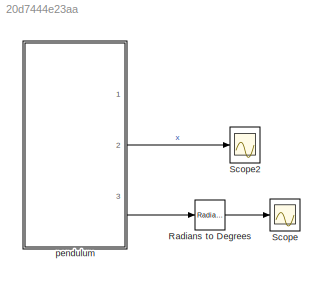
MODEL slx_20d7444e23aa
KIND model
CONFIG AbsTol = auto
CONFIG EnableMultiTasking = off
CONFIG FixedStep = auto
CONFIG MaxStep = 0.01
CONFIG MinStep = auto
CONFIG RelTol = 1e-3
CONFIG SampleTimeConstraint = Unconstrained
CONFIG SolverName = VariableStepAuto
CONFIG StartTime = 0.0
CONFIG StopTime = 10
BLOCK [Reference] Radians to Degrees  REF=simulink_extras/Transformations/Radians
to Degrees
  Ports = [1, 1]
  SourceBlock = simulink_extras/Transformations/Radians\nto Degrees
  SourceProductBaseCode = SL
  SourceType = RadiansToDegrees
BLOCK [Scope] Scope
  Floating = off
  NumInputPorts = 1
  Ports = [1]
  ScopeSpecificationString = Simulink.scopes.TimeScopeBlockCfg('CurrentConfiguration', extmgr.ConfigurationSet(extmgr.Configuration('Core','General UI',true),extmgr.Configuration('Core','Source UI',true),extmgr.Configuration('Sources','WiredSimulink',true,'DataLoggingVariableName','ScopeData2'),extmgr.Configuration('Visuals','Time Domain',true,'SerializedDisplays',{struct('MinYLimReal','-8.0066','MaxYLimReal','34.22296','YLab...<+1412ch>
BLOCK [Scope] Scope2
  Floating = off
  NumInputPorts = 1
  Ports = [1]
  ScopeSpecificationString = Simulink.scopes.TimeScopeBlockCfg('CurrentConfiguration', extmgr.ConfigurationSet(extmgr.Configuration('Core','General UI',true),extmgr.Configuration('Core','Source UI',true),extmgr.Configuration('Sources','WiredSimulink',true,'DataLoggingVariableName','ScopeData2'),extmgr.Configuration('Visuals','Time Domain',true,'SerializedDisplays',{struct('MinYLimReal','-0.13674','MaxYLimReal','0.57075','YLab...<+1415ch>
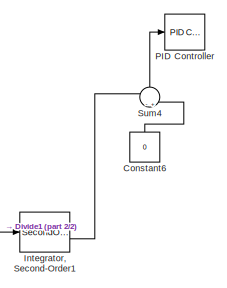
[diagram: pendulum - part 1/2, top right region]
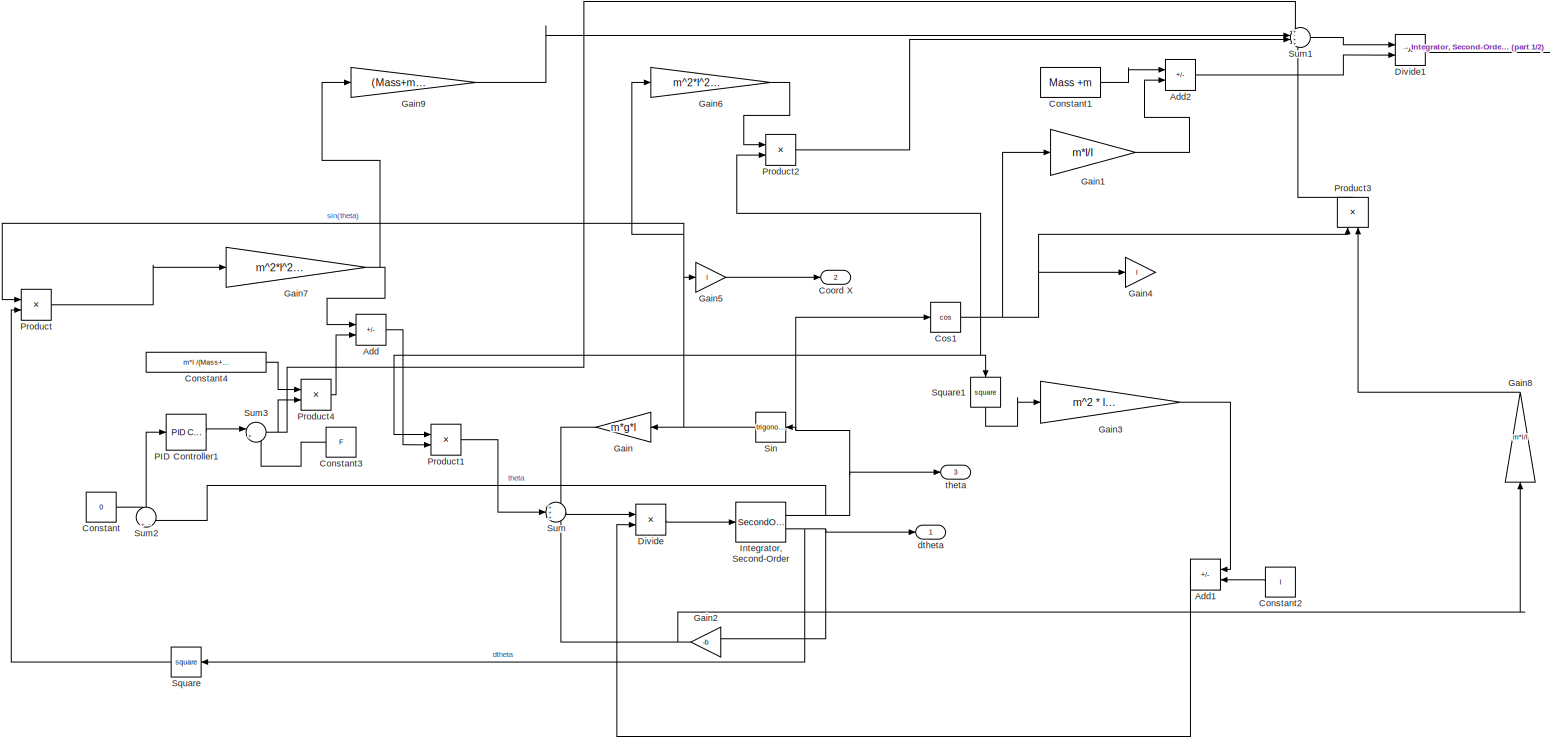
[diagram: pendulum - part 2/2, most of the canvas]
BLOCK [SubSystem] pendulum
  Ports = [0, 3]
  RequestExecContextInheritance = off
BLOCK [Sum] pendulum/Add
  IconShape = rectangular
  Inputs = -+
  Ports = [2, 1]
BLOCK [Sum] pendulum/Add1
  IconShape = rectangular
  Inputs = -+
  NameLocation = top
  Ports = [2, 1]
BLOCK [Sum] pendulum/Add2
  IconShape = rectangular
  Inputs = +-
  Ports = [2, 1]
BLOCK [Constant] pendulum/Constant
  Value = 0
BLOCK [Constant] pendulum/Constant1
  Value = Mass +m
BLOCK [Constant] pendulum/Constant2
  NameLocation = top
  Value = I
BLOCK [Constant] pendulum/Constant3
  NameLocation = top
  Value = F
BLOCK [Constant] pendulum/Constant4
  Value = m*l /(Mass+m)
BLOCK [Constant] pendulum/Constant6
  NameLocation = right
  Value = 0
BLOCK [Outport] pendulum/Coord X
  Port = 2
BLOCK [Trigonometry] pendulum/Cos1
  Operator = cos
  Ports = [1, 1]
BLOCK [Product] pendulum/Divide
  Inputs = */
  Ports = [2, 1]
BLOCK [Product] pendulum/Divide1
  Inputs = */
  Ports = [2, 1]
BLOCK [Gain] pendulum/Gain
  Gain = m*g*l
  NameLocation = top
BLOCK [Gain] pendulum/Gain1
  Gain = m*l/I
BLOCK [Gain] pendulum/Gain2
  Gain = -b
  NameLocation = top
BLOCK [Gain] pendulum/Gain3
  Gain = m^2 * l^2 / (Mass+m)
BLOCK [Gain] pendulum/Gain4
  Gain = l
BLOCK [Gain] pendulum/Gain5
  Gain = l
BLOCK [Gain] pendulum/Gain6
  Gain = m^2*l^2*g/I
BLOCK [Gain] pendulum/Gain7
  Gain = m^2*l^2/(m+Mass)
BLOCK [Gain] pendulum/Gain8
  Gain = m*l/I
  NameLocation = right
BLOCK [Gain] pendulum/Gain9
  Gain = (Mass+m)/(m*l)
BLOCK [SecondOrderIntegrator] pendulum/Integrator, Second-Order
  ICX = deg2rad(start_angle_deg)
  Ports = [1, 2]
BLOCK [SecondOrderIntegrator] pendulum/Integrator, Second-Order1
  Ports = [1, 2]
BLOCK [Reference] pendulum/PID Controller  REF=slpidlib/PID Controller
  Ports = [1, 1]
  SourceBlock = slpidlib/PID Controller
  SourceProductBaseCode = SL
  SourceType = PID 1dof
BLOCK [Reference] pendulum/PID Controller1  REF=slpidlib/PID Controller
  Ports = [1, 1]
  SourceBlock = slpidlib/PID Controller
  SourceProductBaseCode = SL
  SourceType = PID 1dof
BLOCK [Product] pendulum/Product
  Ports = [2, 1]
BLOCK [Product] pendulum/Product1
  Ports = [2, 1]
BLOCK [Product] pendulum/Product2
  Ports = [2, 1]
BLOCK [Product] pendulum/Product3
  NameLocation = right
  Ports = [2, 1]
BLOCK [Product] pendulum/Product4
  Ports = [2, 1]
BLOCK [Trigonometry] pendulum/Sin
  NameLocation = top
  Ports = [1, 1]
BLOCK [Math] pendulum/Square
  NameLocation = top
  Operator = square
  Ports = [1, 1]
BLOCK [Math] pendulum/Square1
  NameLocation = left
  Operator = square
  Ports = [1, 1]
BLOCK [Sum] pendulum/Sum
  Inputs = +++
  Ports = [3, 1]
BLOCK [Sum] pendulum/Sum1
  Inputs = +-++
  Ports = [4, 1]
BLOCK [Sum] pendulum/Sum2
  Inputs = +-
  NameLocation = right
  Ports = [2, 1]
BLOCK [Sum] pendulum/Sum3
  Inputs = |++
  Ports = [2, 1]
BLOCK [Sum] pendulum/Sum4
  Inputs = -+
  NameLocation = right
  Ports = [2, 1]
BLOCK [Outport] pendulum/dtheta
BLOCK [Outport] pendulum/theta
  Port = 3
LINE Radians to Degrees:1 -> Scope:1
LINE pendulum/Add1:1 -> pendulum/Divide:2
LINE pendulum/Add2:1 -> pendulum/Divide1:2
LINE pendulum/Add:1 -> pendulum/Product1:2
LINE pendulum/Constant1:1 -> pendulum/Add2:1
LINE pendulum/Constant2:1 -> pendulum/Add1:2
LINE pendulum/Constant3:1 -> pendulum/Sum3:2
LINE pendulum/Constant4:1 -> pendulum/Product4:1
LINE pendulum/Constant6:1 -> pendulum/Sum4:2
LINE pendulum/Constant:1 -> pendulum/Sum2:1
NET pendulum/Cos1:1 -> pendulum/Gain1:1, pendulum/Gain4:1, pendulum/Product1:1, pendulum/Product2:2, pendulum/Product3:1, pendulum/Square1:1
LINE pendulum/Divide1:1 -> pendulum/Integrator, Second-Order1:1
LINE pendulum/Divide:1 -> pendulum/Integrator, Second-Order:1
LINE pendulum/Gain1:1 -> pendulum/Add2:2
NET pendulum/Gain2:1 -> pendulum/Gain8:1, pendulum/Sum:3
LINE pendulum/Gain3:1 -> pendulum/Add1:1
LINE pendulum/Gain5:1 -> pendulum/Coord X:1
LINE pendulum/Gain6:1 -> pendulum/Product2:1
NET pendulum/Gain7:1 -> pendulum/Add:1, pendulum/Gain9:1
LINE pendulum/Gain8:1 -> pendulum/Product3:2
LINE pendulum/Gain9:1 -> pendulum/Sum1:2
LINE pendulum/Gain:1 -> pendulum/Sum:1
LINE pendulum/Integrator, Second-Order1:2 -> pendulum/Sum4:1
NET pendulum/Integrator, Second-Order:1 -> pendulum/Cos1:1, pendulum/Sin:1, pendulum/Sum2:2, pendulum/theta:1
NET pendulum/Integrator, Second-Order:2 -> pendulum/Gain2:1, pendulum/Square:1, pendulum/dtheta:1
LINE pendulum/PID Controller1:1 -> pendulum/Sum3:1
LINE pendulum/Product1:1 -> pendulum/Sum:2
LINE pendulum/Product2:1 -> pendulum/Sum1:3
LINE pendulum/Product3:1 -> pendulum/Sum1:4
LINE pendulum/Product4:1 -> pendulum/Add:2
LINE pendulum/Product:1 -> pendulum/Gain7:1
NET pendulum/Sin:1 -> pendulum/Gain5:1, pendulum/Gain6:1, pendulum/Gain:1, pendulum/Product:1
LINE pendulum/Square1:1 -> pendulum/Gain3:1
LINE pendulum/Square:1 -> pendulum/Product:2
LINE pendulum/Sum1:1 -> pendulum/Divide1:1
LINE pendulum/Sum2:1 -> pendulum/PID Controller1:1
NET pendulum/Sum3:1 -> pendulum/Product4:2, pendulum/Sum1:1
LINE pendulum/Sum4:1 -> pendulum/PID Controller:1
LINE pendulum/Sum:1 -> pendulum/Divide:1
LINE pendulum:2 -> Scope2:1
LINE pendulum:3 -> Radians to Degrees:1
note: NET lines group one-source signal fan-out (src -> all destinations, sorted); 1:1 wires keep LINE
